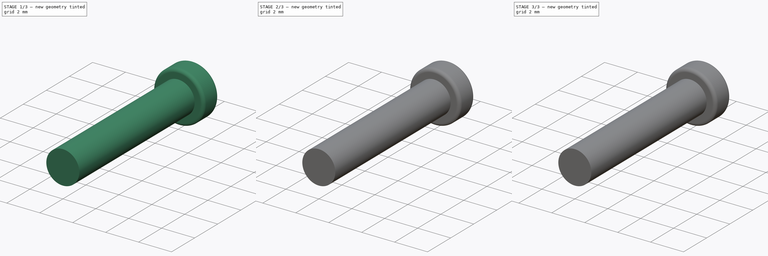
[diagram: build sequence overview — one tinted view per stage of 3, left to right]
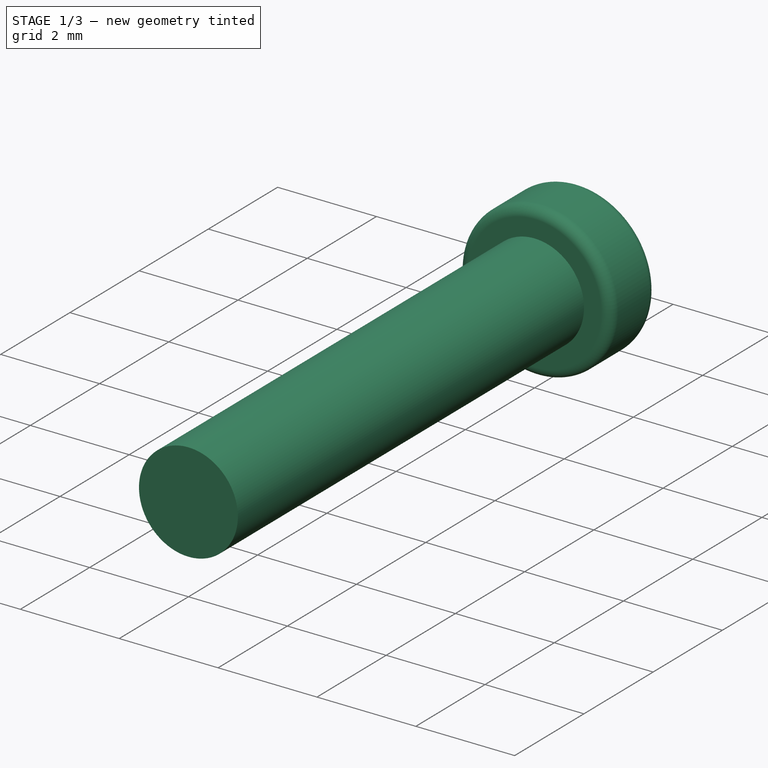
[diagram: stage 1 of 3 — iso view after this stage's code; geometry added in this stage tinted green]
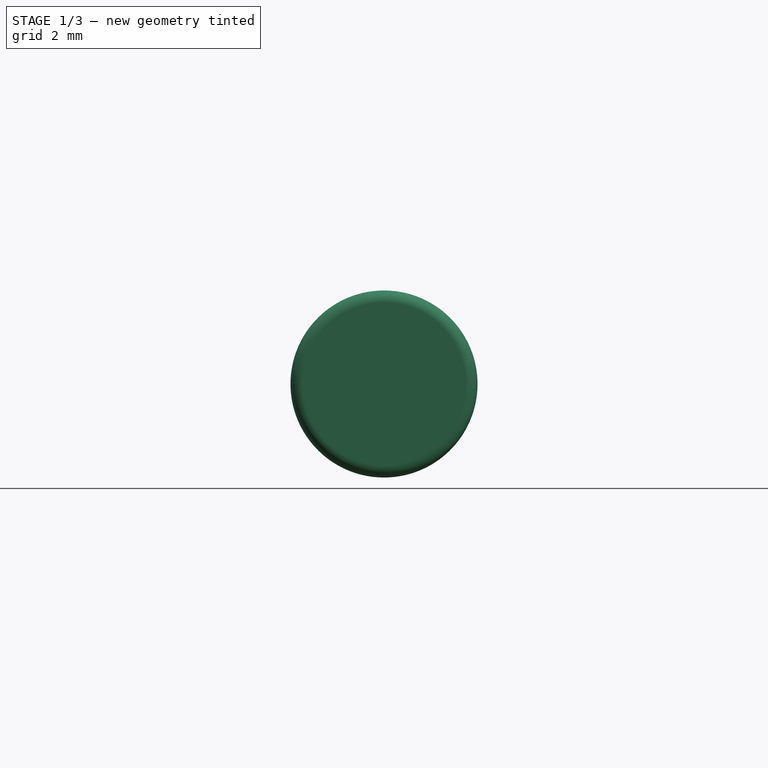
[diagram: stage 1 of 3 — front view after this stage's code; geometry added in this stage tinted green]
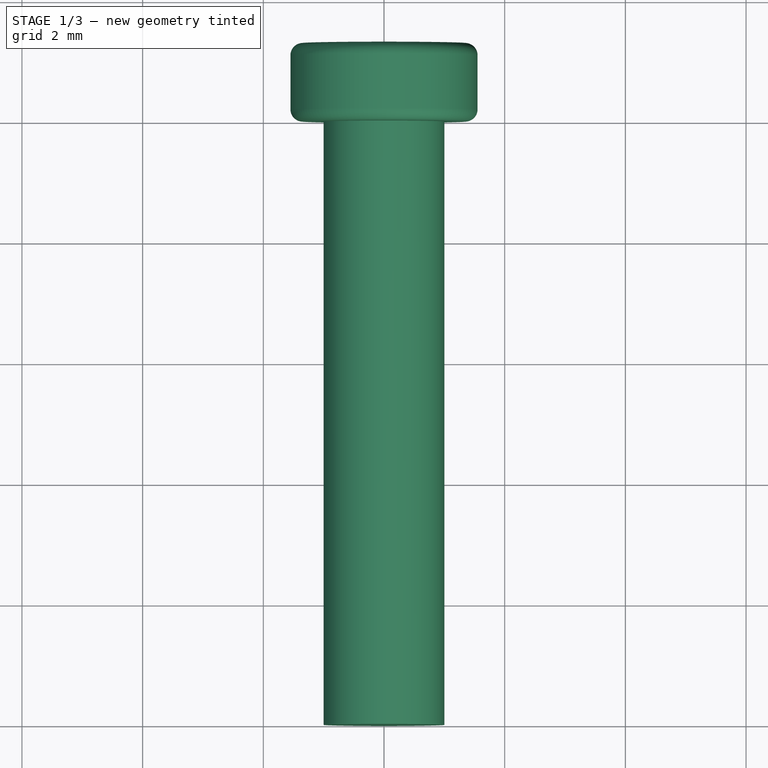
[diagram: stage 1 of 3 — top view after this stage's code; geometry added in this stage tinted green]
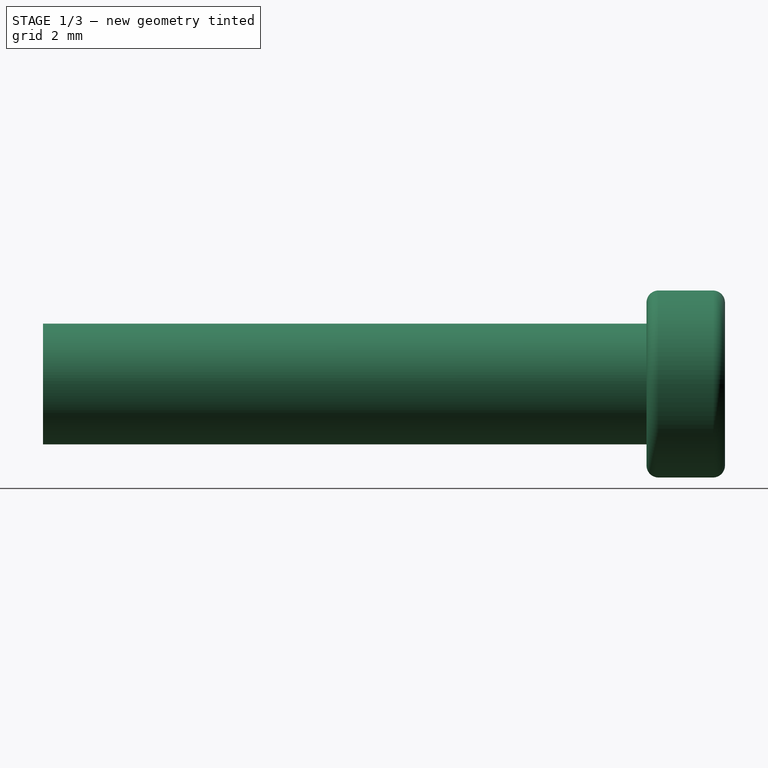
[diagram: stage 1 of 3 — right view after this stage's code; geometry added in this stage tinted green]
FCSTD DOCUMENT  (FreeCAD 0.18R16117 (Git))
Label: Screw-M2x10mm
License: All rights reserved
LicenseURL: http://en.wikipedia.org/wiki/All_rights_reserved
objects: Sketcher::SketchObject×2, PartDesign::Fillet×2, PartDesign::Revolution×1, PartDesign::Pocket×1, PartDesign::Mirrored×1, PartDesign::Body×1
note: 10 computed .brp shape members not serialized (recipe doc carries the construction recipe); baked Part::Feature solids carry a one-line shape summary decoded from their .brp

FEATURE [Sketcher::SketchObject] Sketch
  MapMode = 5
  Support = -> [XY_Plane]
  sketch-geometry (6):
    g0: LineSegment StartX=0 StartY=0 StartZ=0 EndX=0 EndY=11.3 EndZ=0
    g1: LineSegment StartX=0 StartY=11.3 StartZ=0 EndX=1.55 EndY=11.3 EndZ=0
    g2: LineSegment StartX=1.55 StartY=11.3 StartZ=0 EndX=1.55 EndY=10 EndZ=0
    g3: LineSegment StartX=1.55 StartY=10 StartZ=0 EndX=1 EndY=10 EndZ=0
    g4: LineSegment StartX=1 StartY=10 StartZ=0 EndX=1 EndY=0 EndZ=0
    g5: LineSegment StartX=1 StartY=0 StartZ=0 EndX=0 EndY=0 EndZ=0
  constraints (17):
    c: Coincident(g-1,g0)
    c: PointOnObject(g0,g-2)
    c: Coincident(g0,g1)
    c: Horizontal(g1)
    c: Coincident(g1,g2)
    c: Vertical(g2)
    c: Coincident(g2,g3)
    c: Horizontal(g3)
    c: Coincident(g3,g4)
    c: PointOnObject(g4,g-1)
    c: Vertical(g4)
    c: Coincident(g4,g5)
    c: Coincident(g5,g0)
    c: DistanceX(g1,g1) = 1.55
    c: DistanceY(g2,g2) = 1.3
    c: DistanceX(g5,g5) = 1
    c: DistanceY(g4,g4) = 10
FEATURE [PartDesign::Revolution] Revolution
  Angle = 360
  Axis = (1e-16,1,-1e-16)
  Base = (0,0,0)
  Profile = -> Sketch
  ReferenceAxis = -> Y_Axis
  Reversed = true
FEATURE [PartDesign::Fillet] Fillet
  Base = -> Revolution [Edge1,Edge2]
  BaseFeature = -> Revolution
  Radius = 0.2
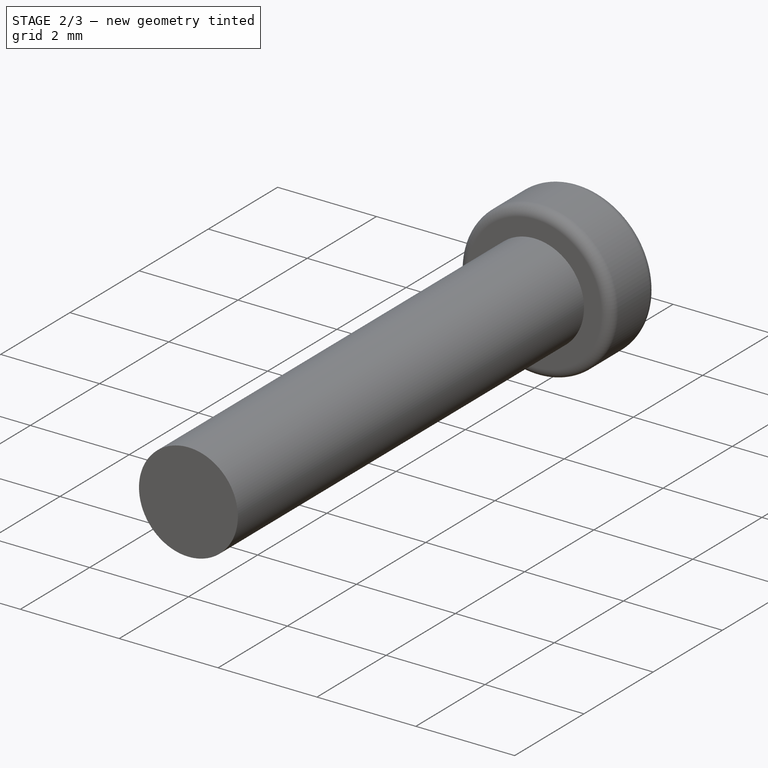
[diagram: stage 2 of 3 — iso view after this stage's code; geometry added in this stage tinted green]
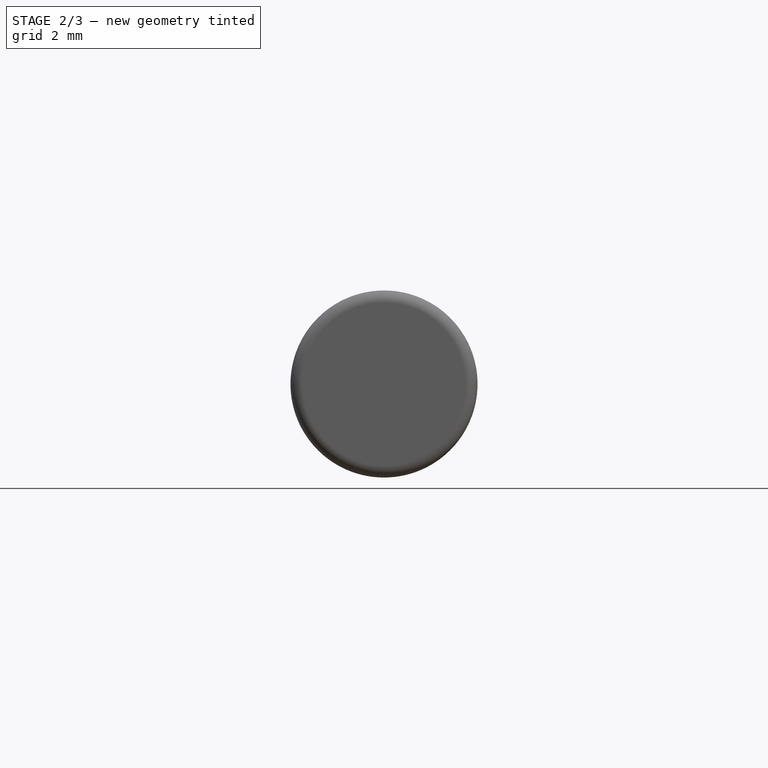
[diagram: stage 2 of 3 — front view after this stage's code; geometry added in this stage tinted green]
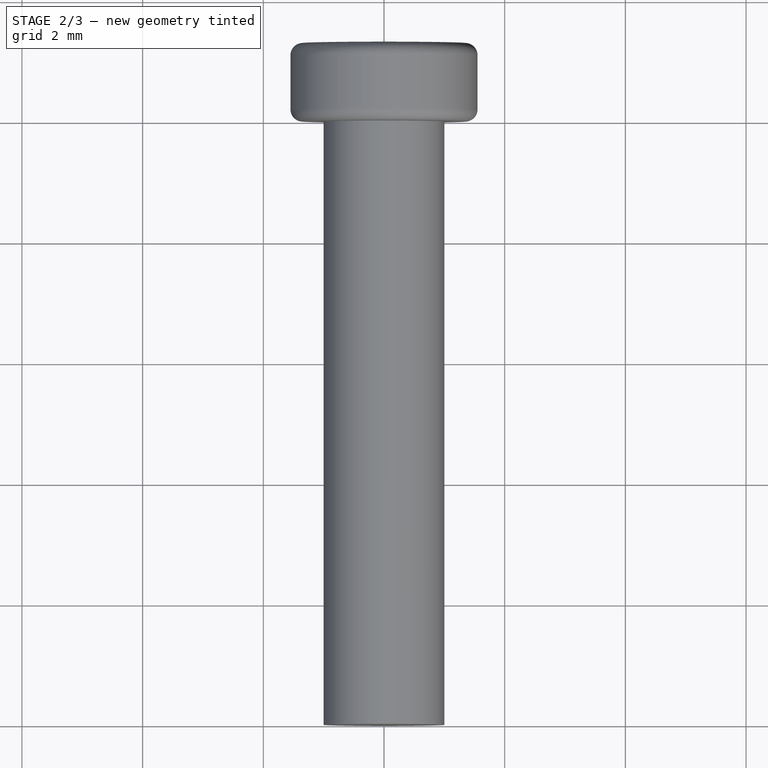
[diagram: stage 2 of 3 — top view after this stage's code; geometry added in this stage tinted green]
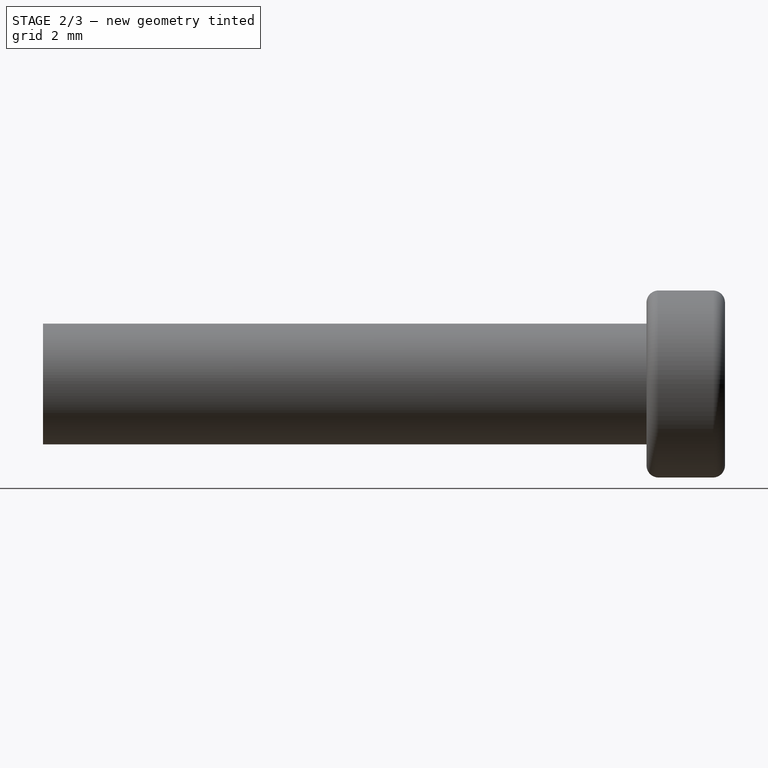
[diagram: stage 2 of 3 — right view after this stage's code; geometry added in this stage tinted green]
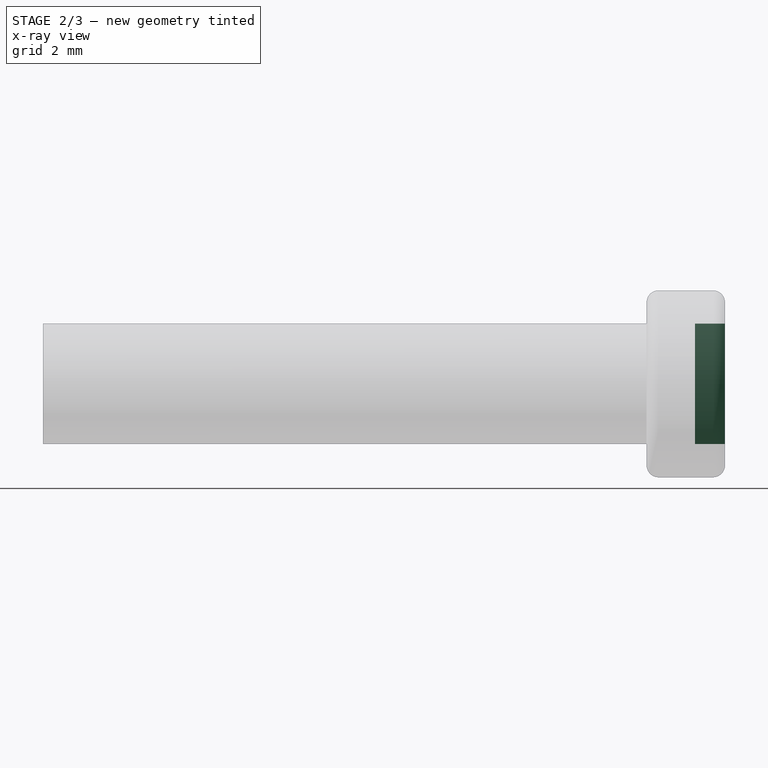
[diagram: stage 2 of 3 — x-ray composite at the right view; earlier geometry ghosted, this stage's added geometry solid]
FEATURE [Sketcher::SketchObject] Sketch001
  MapMode = 5
  Placement = pos=(1.3e-15,11.3,-1.3e-15) rot=(0,0.707107,0.707107;3.14159rad)
  Support = -> [Fillet]
  sketch-geometry (8):
    g0: LineSegment StartX=0 StartY=1 StartZ=0 EndX=0.3 EndY=1 EndZ=0
    g1: LineSegment StartX=0.3 StartY=1 StartZ=0 EndX=0.3 EndY=0.3 EndZ=0
    g2: LineSegment StartX=0.3 StartY=0.3 StartZ=0 EndX=1 EndY=0.3 EndZ=0
    g3: LineSegment StartX=1 StartY=0.3 StartZ=0 EndX=1 EndY=-0.3 EndZ=0
    g4: LineSegment StartX=1 StartY=-0.3 StartZ=0 EndX=0.3 EndY=-0.3 EndZ=0
    g5: LineSegment StartX=0.3 StartY=-0.3 StartZ=0 EndX=0.3 EndY=-1 EndZ=0
    g6: LineSegment StartX=0.3 StartY=-1 StartZ=0 EndX=0 EndY=-1 EndZ=0
    g7: LineSegment StartX=0 StartY=-1 StartZ=0 EndX=0 EndY=1 EndZ=0
  constraints (22):
    c: PointOnObject(g0,g-2)
    c: Horizontal(g0)
    c: Coincident(g0,g1)
    c: Vertical(g1)
    c: Coincident(g1,g2)
    c: Horizontal(g2)
    c: Coincident(g2,g3)
    c: Coincident(g3,g4)
    c: Horizontal(g4)
    c: Coincident(g4,g5)
    c: Vertical(g5)
    c: Coincident(g5,g6)
    c: Horizontal(g6)
    c: Coincident(g6,g7)
    c: Coincident(g7,g0)
    c: Symmetric(g0,g6,g-1)
    c: Vertical(g4,g1)
    c: Symmetric(g3,g2,g-1)
    c: DistanceX(g0,g0) = 0.3
    c: DistanceY(g7,g7) = 2
    c: DistanceX(g6,g3) = 1
    c: DistanceY(g3,g2) = 0.6
FEATURE [PartDesign::Pocket] Pocket
  BaseFeature = -> Fillet
  Length = 0.5
  Length2 = 100
  Profile = -> Sketch001
  Type = 0
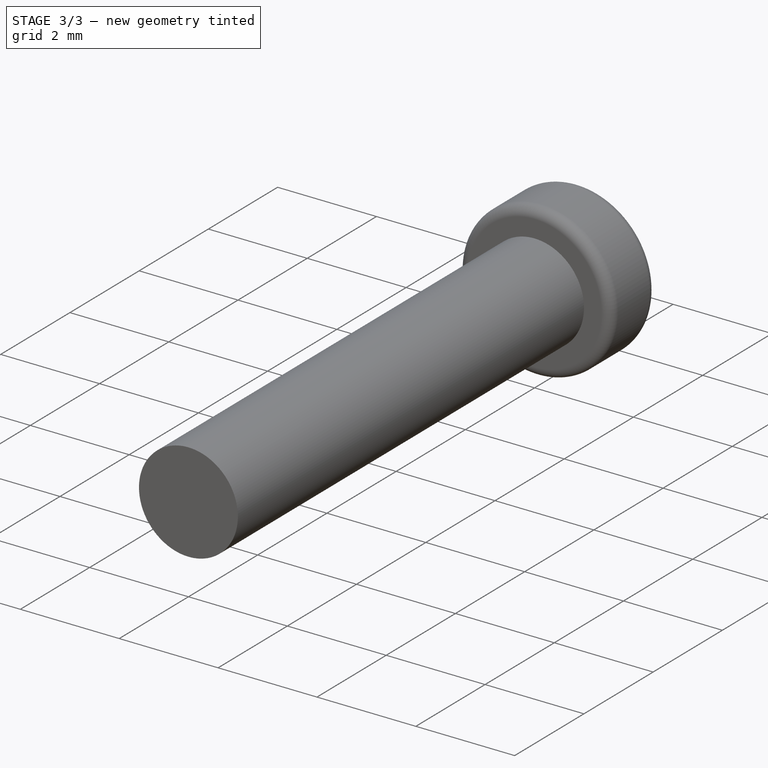
[diagram: stage 3 of 3 — iso view after this stage's code; geometry added in this stage tinted green]
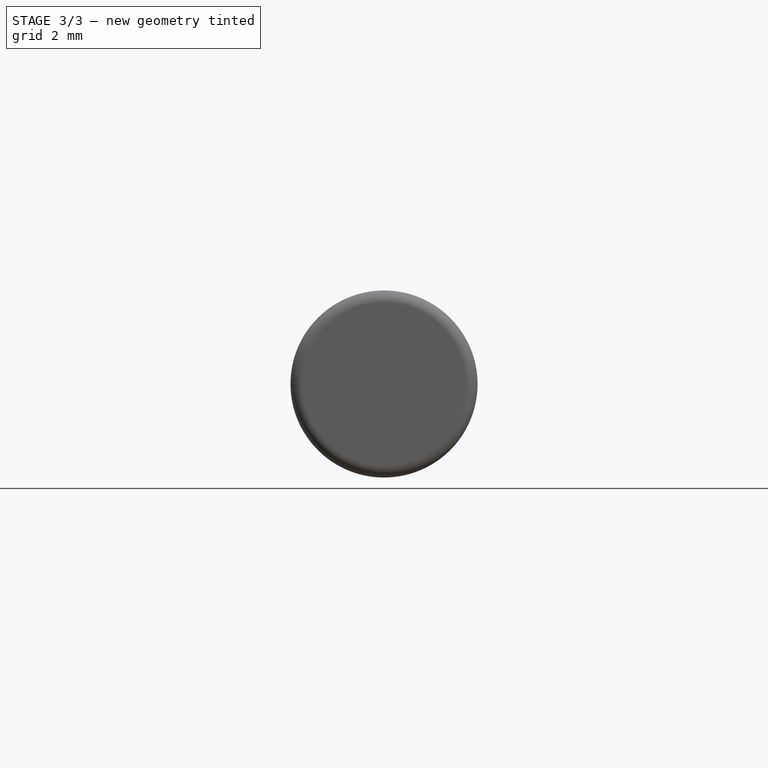
[diagram: stage 3 of 3 — front view after this stage's code; geometry added in this stage tinted green]
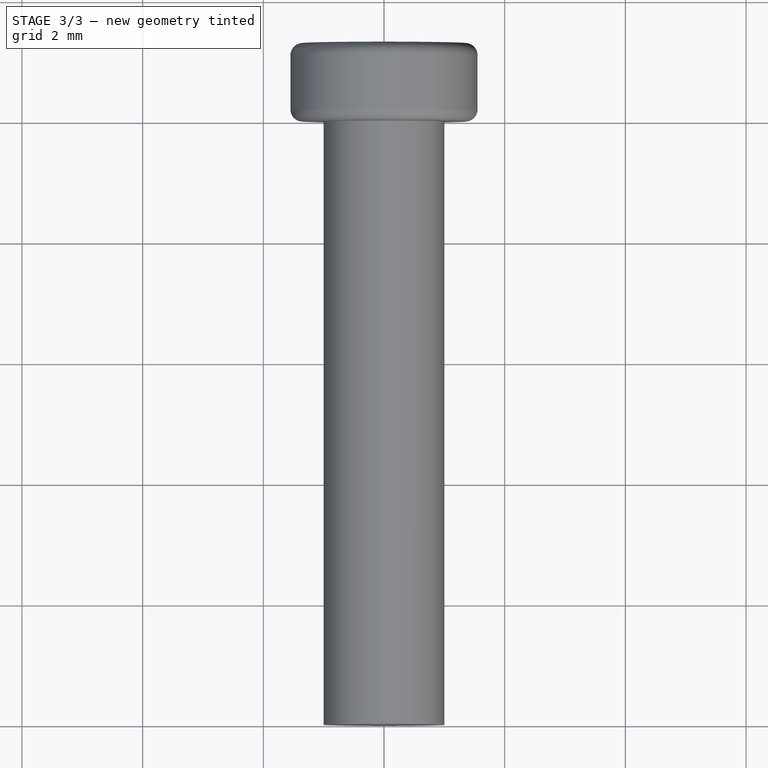
[diagram: stage 3 of 3 — top view after this stage's code; geometry added in this stage tinted green]
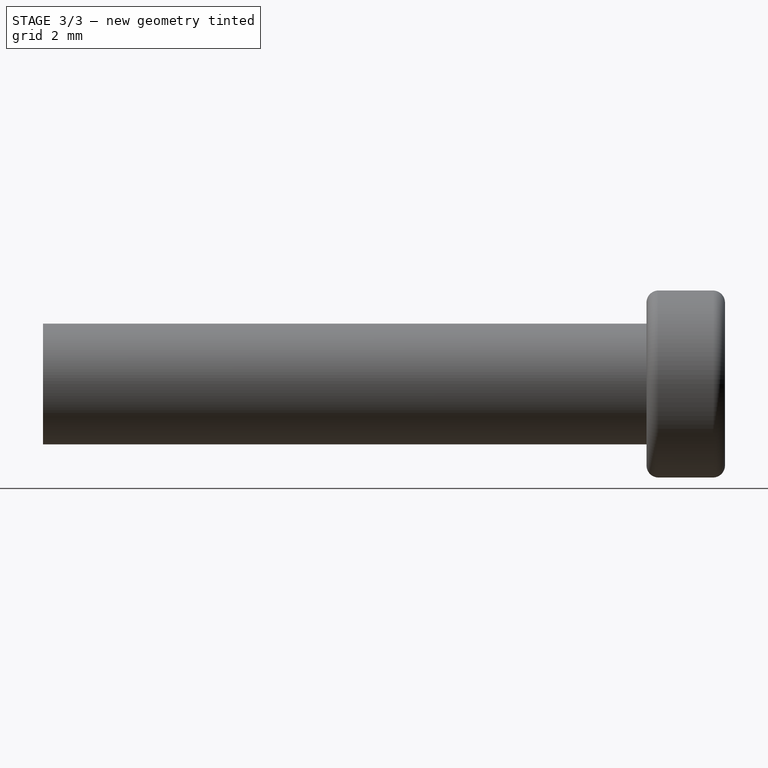
[diagram: stage 3 of 3 — right view after this stage's code; geometry added in this stage tinted green]
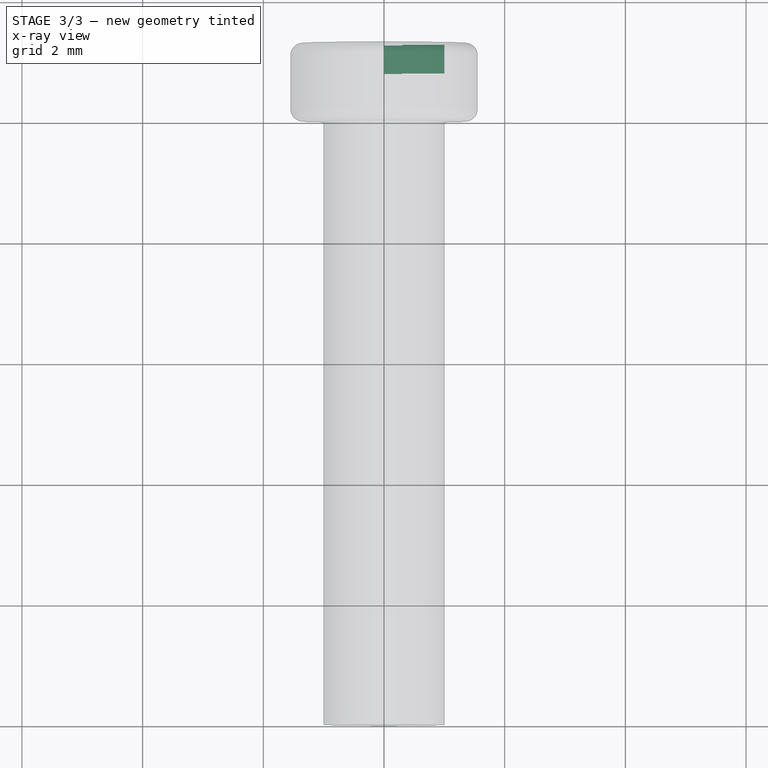
[diagram: stage 3 of 3 — x-ray composite at the top view; earlier geometry ghosted, this stage's added geometry solid]
FEATURE [PartDesign::Mirrored] Mirrored
  BaseFeature = -> Pocket
  MirrorPlane = -> Sketch001 [V_Axis]
  Originals = -> [Pocket]
FEATURE [PartDesign::Fillet] Fillet001
  Base = -> Mirrored [Edge6,Edge5,Edge4,Edge3,Edge2,Edge15,Edge14,Edge13,Edge11,Edge12,Edge10,Edge7,Edge8,Edge9]
  BaseFeature = -> Mirrored
  Radius = 0.05
FEATURE [PartDesign::Body] Body
  Group = -> [Sketch,Revolution,Fillet,Sketch001,Pocket,Mirrored,Fillet001]
  Origin = -> Origin
  Tip = -> Fillet001
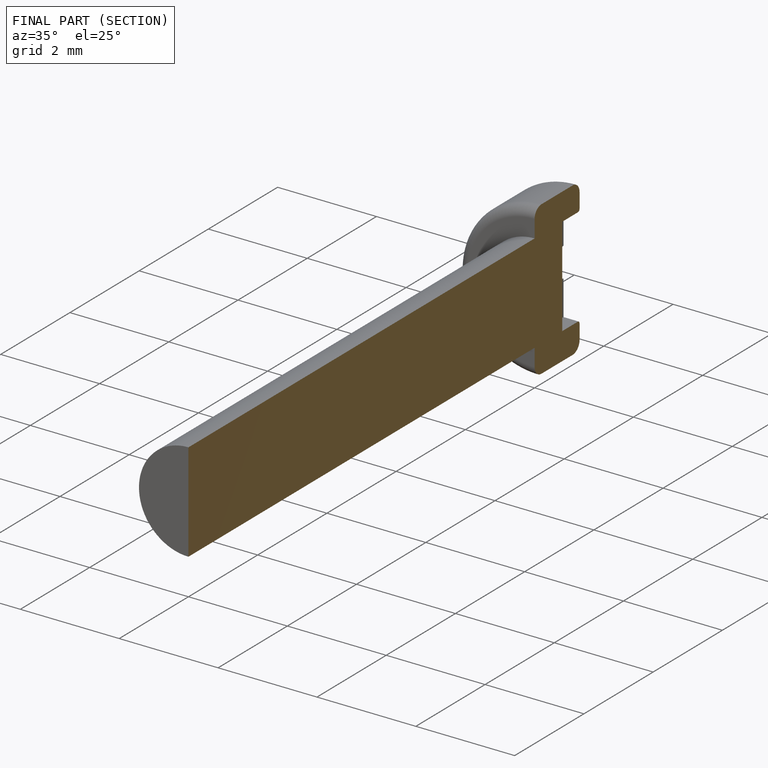
[diagram: finished part — half-section view (interior)]
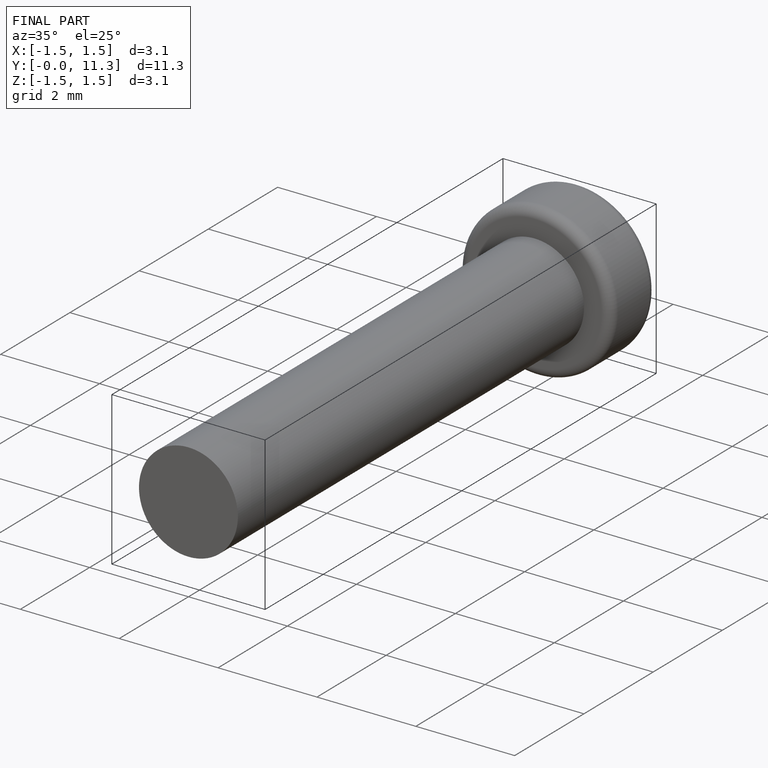
[diagram: finished part — iso view with bounding-box wireframe]
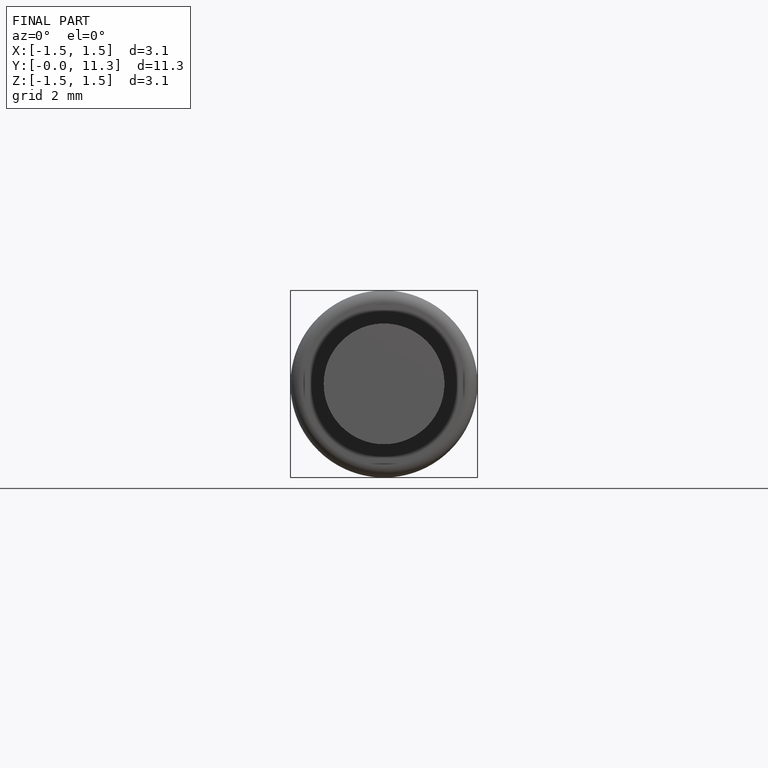
[diagram: finished part — front view with bounding-box wireframe]
